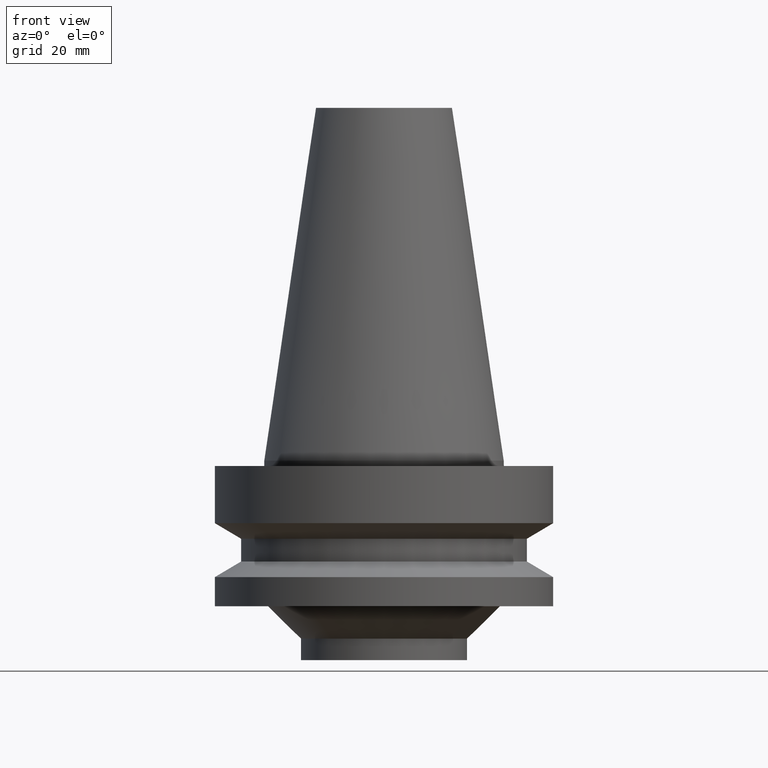
[diagram: clean part render]
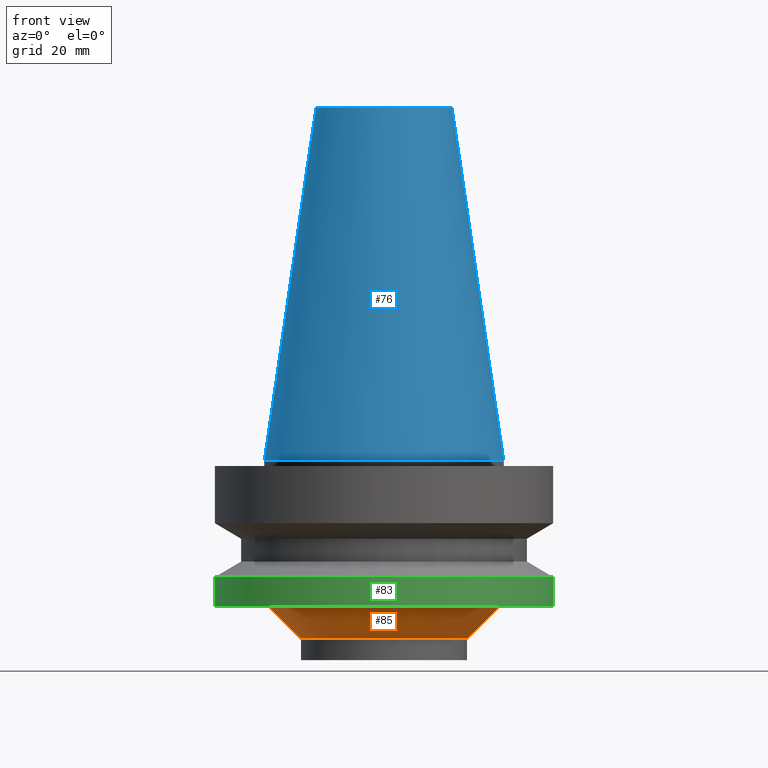
[diagram: same view with three faces highlighted in distinct colors, each labeled with its STEP entity id]
A machine part, front view with three faces highlighted in distinct colors.
Their STEP definitions:

[orange] entity #85 — the highlighted conical surface has half-angle 45 deg.
#85=ADVANCED_FACE('',(#118,#119),#120,.T.);
#118=FACE_BOUND('',#155,.T.);
#119=FACE_BOUND('',#156,.T.);
#120=CONICAL_SURFACE('',#157,18.5,0.785398163397448);
#155=EDGE_LOOP('',(#212));
#156=EDGE_LOOP('',(#213));
#157=AXIS2_PLACEMENT_3D('',#214,#215,#216);
#212=ORIENTED_EDGE('',*,*,#236,.F.);
#213=ORIENTED_EDGE('',*,*,#235,.T.);
#214=CARTESIAN_POINT('',(1.83697019872103E-015,3.67394039744206E-015,-30.0));
#215=DIRECTION('',(-6.12323399573677E-017,-1.22464679914735E-016,1.0));
#216=DIRECTION('',(-1.23259516440783E-032,1.0,1.22464679914735E-016));
#235=EDGE_CURVE('',#256,#256,#257,.T.);
#236=EDGE_CURVE('',#258,#258,#259,.T.);
#256=VERTEX_POINT('',#280);
#257=CIRCLE('',#281,21.5);
#258=VERTEX_POINT('',#282);
#259=CIRCLE('',#283,15.5);
#280=CARTESIAN_POINT('',(1.65327317884893E-015,21.5,-27.0));
#281=AXIS2_PLACEMENT_3D('',#313,#314,#315);
#282=CARTESIAN_POINT('',(2.02066721859313E-015,15.5,-33.0));
#283=AXIS2_PLACEMENT_3D('',#316,#317,#318);
#313=CARTESIAN_POINT('',(1.65327317884893E-015,3.30654635769785E-015,-27.0));
#314=DIRECTION('',(6.12323399573677E-017,1.22464679914735E-016,-1.0));
#315=DIRECTION('',(-1.23259516440783E-032,1.0,1.22464679914735E-016));
#316=CARTESIAN_POINT('',(2.02066721859313E-015,4.04133443718626E-015,-33.0));
#317=DIRECTION('',(6.12323399573677E-017,1.22464679914735E-016,-1.0));
#318=DIRECTION('',(-1.23259516440783E-032,1.0,1.22464679914735E-016));

[blue] entity #76 — the highlighted conical surface has half-angle 8.297 deg.
#76=ADVANCED_FACE('',(#91,#92),#93,.T.);
#91=FACE_BOUND('',#128,.T.);
#92=FACE_BOUND('',#129,.T.);
#93=CONICAL_SURFACE('',#130,17.4562500026599,0.144812498159292);
#128=EDGE_LOOP('',(#167));
#129=EDGE_LOOP('',(#168));
#130=AXIS2_PLACEMENT_3D('',#169,#170,#171);
#167=ORIENTED_EDGE('',*,*,#227,.F.);
#168=ORIENTED_EDGE('',*,*,#226,.T.);
#169=CARTESIAN_POINT('',(-2.00229751660592E-015,-4.00459503321184E-015,32.7));
#170=DIRECTION('',(6.12323399573677E-017,1.22464679914735E-016,-1.0));
#171=DIRECTION('',(-1.23259516440783E-032,1.0,1.22464679914735E-016));
#226=EDGE_CURVE('',#238,#238,#239,.T.);
#227=EDGE_CURVE('',#240,#240,#241,.T.);
#238=VERTEX_POINT('',#262);
#239=CIRCLE('',#263,12.6875000053197);
#240=VERTEX_POINT('',#264);
#241=CIRCLE('',#265,22.225);
#262=CARTESIAN_POINT('',(-4.00459503321185E-015,12.6875000053197,65.4));
#263=AXIS2_PLACEMENT_3D('',#286,#287,#288);
#264=CARTESIAN_POINT('',(-2.7394427528964E-031,22.225,2.72177751110499E-015));
#265=AXIS2_PLACEMENT_3D('',#289,#290,#291);
#286=CARTESIAN_POINT('',(-4.00459503321185E-015,-8.00919006642369E-015,65.4));
#287=DIRECTION('',(6.12323399573677E-017,1.22464679914735E-016,-1.0));
#288=DIRECTION('',(-1.23259516440783E-032,1.0,1.22464679914735E-016));
#289=CARTESIAN_POINT('',(0.0,0.0,0.0));
#290=DIRECTION('',(6.12323399573677E-017,1.22464679914735E-016,-1.0));
#291=DIRECTION('',(-1.23259516440783E-032,1.0,1.22464679914735E-016));

[green] entity #83 — the highlighted cylindrical surface (bore or boss wall) has radius 31.5 mm, axis along (-0, -0, 1).
#83=ADVANCED_FACE('',(#112,#113),#114,.T.);
#112=FACE_BOUND('',#149,.T.);
#113=FACE_BOUND('',#150,.T.);
#114=CYLINDRICAL_SURFACE('',#151,31.5);
#149=EDGE_LOOP('',(#202));
#150=EDGE_LOOP('',(#203));
#151=AXIS2_PLACEMENT_3D('',#204,#205,#206);
#202=ORIENTED_EDGE('',*,*,#234,.F.);
#203=ORIENTED_EDGE('',*,*,#233,.T.);
#204=CARTESIAN_POINT('',(1.48794586096403E-015,2.97589172192807E-015,-24.3));
#205=DIRECTION('',(-6.12323399573677E-017,-1.22464679914735E-016,1.0));
#206=DIRECTION('',(-1.23259516440783E-032,1.0,1.22464679914735E-016));
#233=EDGE_CURVE('',#252,#252,#253,.T.);
#234=EDGE_CURVE('',#254,#254,#255,.T.);
#252=VERTEX_POINT('',#276);
#253=CIRCLE('',#277,31.5);
#254=VERTEX_POINT('',#278);
#255=CIRCLE('',#279,31.5);
#276=CARTESIAN_POINT('',(1.32261854307914E-015,31.5,-21.6));
#277=AXIS2_PLACEMENT_3D('',#307,#308,#309);
#278=CARTESIAN_POINT('',(1.65327317884893E-015,31.5,-27.0));
#279=AXIS2_PLACEMENT_3D('',#310,#311,#312);
#307=CARTESIAN_POINT('',(1.32261854307914E-015,2.64523708615828E-015,-21.6));
#308=DIRECTION('',(6.12323399573677E-017,1.22464679914735E-016,-1.0));
#309=DIRECTION('',(-1.23259516440783E-032,1.0,1.22464679914735E-016));
#310=CARTESIAN_POINT('',(1.65327317884893E-015,3.30654635769785E-015,-27.0));
#311=DIRECTION('',(6.12323399573677E-017,1.22464679914735E-016,-1.0));
#312=DIRECTION('',(-1.23259516440783E-032,1.0,1.22464679914735E-016));